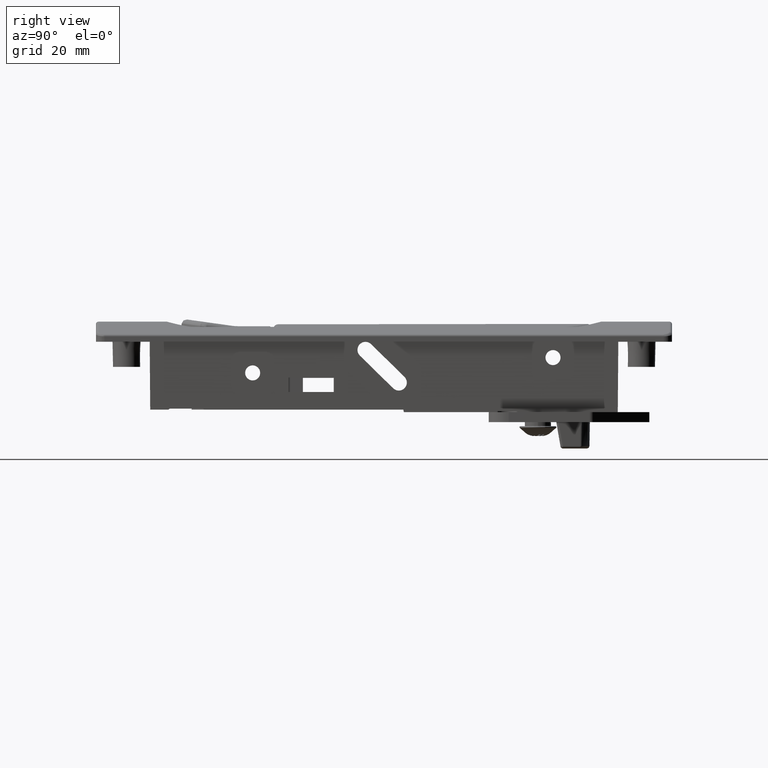
[diagram: clean part render]
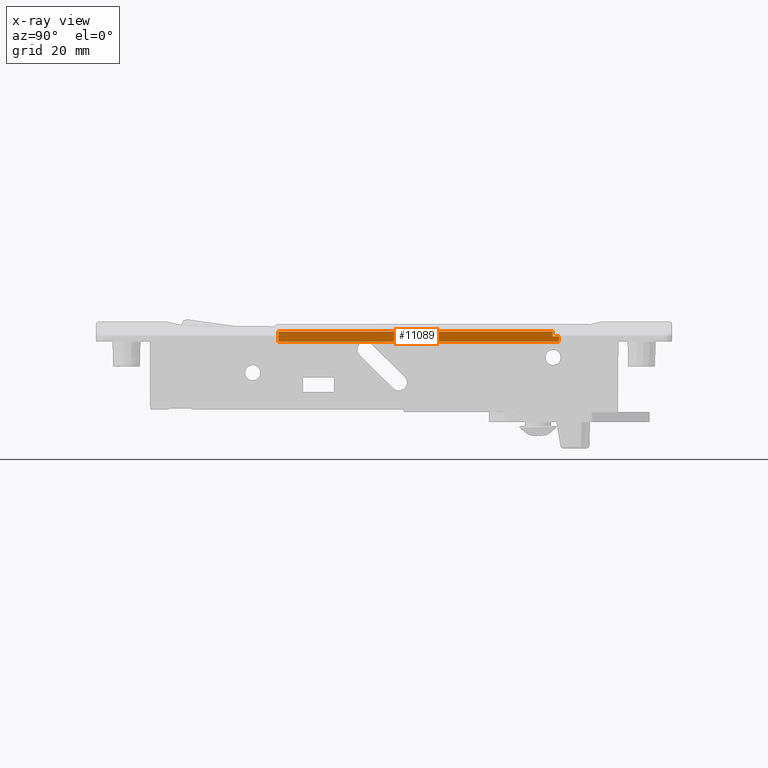
[diagram: x-ray — body ghosted, one internal face saturated and labeled with its STEP entity id]
A machine part, right view, then the same camera in x-ray: the body is ghosted and one INTERNAL B-rep face — a face not visible from any outside direction — is saturated and labeled: STEP entity #11089.
In plain terms, the highlighted planar face has unit normal (0.9938, -0, 0.1111).
Its self-contained STEP definition (entity closure, byte-faithful):
#1346=FACE_OUTER_BOUND('',#2060,.T.);
#2060=EDGE_LOOP('',(#9775,#9776,#9777,#9778,#9779,#9780,#9781));
#3417=LINE('',#22119,#4273);
#3418=LINE('',#22123,#4274);
#3419=LINE('',#22125,#4275);
#3420=LINE('',#22127,#4276);
#3421=LINE('',#22129,#4277);
#3422=LINE('',#22131,#4278);
#3423=LINE('',#22132,#4279);
#4273=VECTOR('',#15122,54.6617797140008);
#4274=VECTOR('',#15127,1.98683088979036);
#4275=VECTOR('',#15128,4.89999999987301);
#4276=VECTOR('',#15129,50.9915445214922);
#4277=VECTOR('',#15130,1.0062279585305);
#4278=VECTOR('',#15131,1.22976480734839);
#4279=VECTOR('',#15132,0.980602931240993);
#5259=VERTEX_POINT('',#21954);
#5287=VERTEX_POINT('',#22118);
#5288=VERTEX_POINT('',#22122);
#5289=VERTEX_POINT('',#22124);
#5290=VERTEX_POINT('',#22126);
#5291=VERTEX_POINT('',#22128);
#5292=VERTEX_POINT('',#22130);
#6808=EDGE_CURVE('',#5287,#5259,#3417,.T.);
#6810=EDGE_CURVE('',#5259,#5288,#3418,.T.);
#6811=EDGE_CURVE('',#5289,#5288,#3419,.T.);
#6812=EDGE_CURVE('',#5290,#5289,#3420,.T.);
#6813=EDGE_CURVE('',#5290,#5291,#3421,.T.);
#6814=EDGE_CURVE('',#5292,#5291,#3422,.T.);
#6815=EDGE_CURVE('',#5292,#5287,#3423,.T.);
#9775=ORIENTED_EDGE('',*,*,#6808,.T.);
#9776=ORIENTED_EDGE('',*,*,#6810,.T.);
#9777=ORIENTED_EDGE('',*,*,#6811,.F.);
#9778=ORIENTED_EDGE('',*,*,#6812,.F.);
#9779=ORIENTED_EDGE('',*,*,#6813,.T.);
#9780=ORIENTED_EDGE('',*,*,#6814,.F.);
#9781=ORIENTED_EDGE('',*,*,#6815,.T.);
#10513=PLANE('',#12190);
#11089=ADVANCED_FACE('',(#1346),#10513,.T.);
#12190=AXIS2_PLACEMENT_3D('',#22121,#15125,#15126);
#15122=DIRECTION('',(1.,-4.8454784236933E-14,-5.41626193664636E-15));
#15125=DIRECTION('center_axis',(4.87565586235749E-14,0.993810588869249,
0.111087863654665));
#15126=DIRECTION('ref_axis',(0.,-0.111087863654667,0.993810588869248));
#15127=DIRECTION('',(8.27513548409193E-12,0.111087863654665,-0.993810588869249));
#15128=DIRECTION('',(1.,0.,-4.3890085756931E-13));
#15129=DIRECTION('',(1.,0.,-4.3890085756931E-13));
#15130=DIRECTION('',(-5.44999419135687E-15,-0.111087863654665,0.993810588869248));
#15131=DIRECTION('',(-1.,4.90602124485812E-14,0.));
#15132=DIRECTION('',(-5.44999419135687E-15,-0.111087863654665,0.993810588869249));
#21954=CARTESIAN_POINT('',(117.995874386804,61.1344110906974,-1.97546642342437));
#22118=CARTESIAN_POINT('',(63.3340946728032,61.1344110906995,-1.97546642341857));
#22119=CARTESIAN_POINT('',(86.095874386782,61.134411090699,-1.97546642342419));
#22121=CARTESIAN_POINT('Origin',(86.095874386782,61.3551238896873,-3.94999999997654));
#22122=CARTESIAN_POINT('',(117.99587438682,61.3551238896873,-3.94999999999054));
#22123=CARTESIAN_POINT('',(117.99587438682,61.3551238896565,-3.94999999971437));
#22124=CARTESIAN_POINT('',(113.095874386947,61.3551238896873,-3.94999999999054));
#22125=CARTESIAN_POINT('',(53.1958743868016,61.3551238896873,-3.9499999999621));
#22126=CARTESIAN_POINT('',(62.1043298654548,61.3551238896873,-3.949999999966));
#22127=CARTESIAN_POINT('',(53.1958743868016,61.3551238896873,-3.9499999999621));
#22128=CARTESIAN_POINT('',(62.1043298654548,61.2433441754246,-2.9499999999621));
#22129=CARTESIAN_POINT('',(62.1043298654548,61.3551238896864,-3.94999999995798));
#22130=CARTESIAN_POINT('',(63.3340946728032,61.2433441754245,-2.9499999999621));
#22131=CARTESIAN_POINT('',(55.1958743868025,61.2433441754249,-2.9499999999621));
#22132=CARTESIAN_POINT('',(63.3340946728032,61.2533146537135,-3.03919756460731));